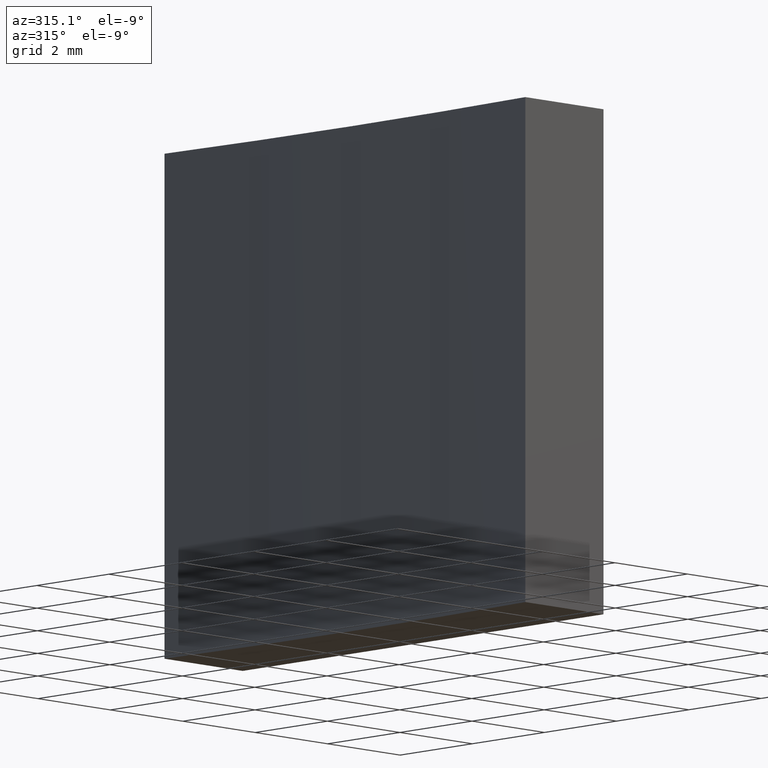
[diagram: clean part render]
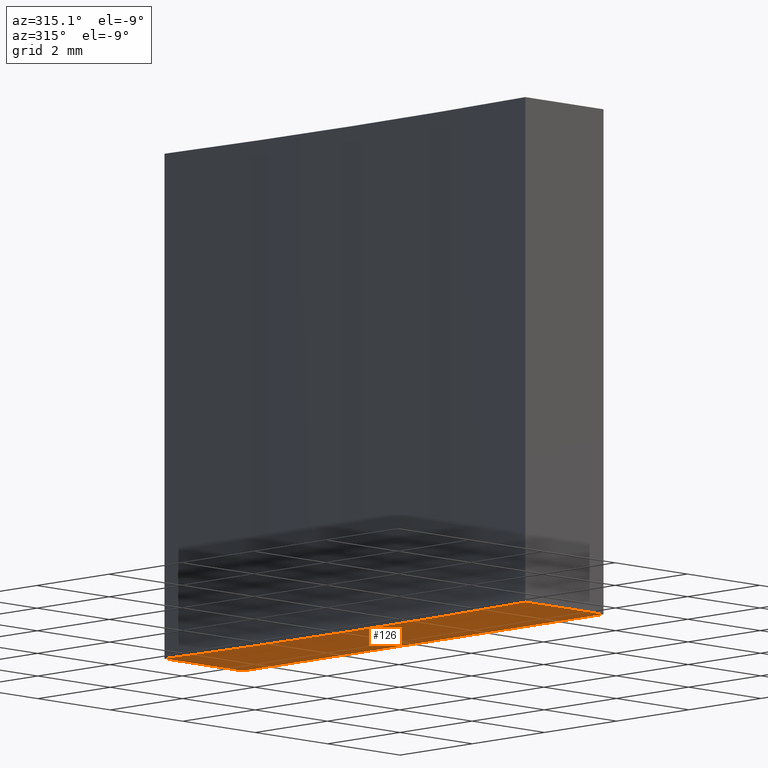
[diagram: same view with one face highlighted and labeled with its STEP entity id]
A machine part, auxiliary view. The second image highlights one B-rep face of the part: STEP entity #126.
In plain terms, the highlighted planar face has unit normal (0, 0, 1).
Its self-contained STEP definition (entity closure, byte-faithful):
#4 = FACE_OUTER_BOUND ( 'NONE', #208, .T. ) ;
#8 = CARTESIAN_POINT ( 'NONE',  ( -94.20070012826145955, 18.68283811033194297, 0.000000000000000000 ) ) ;
#19 = EDGE_CURVE ( 'NONE', #156, #158, #20, .T. ) ;
#20 = LINE ( 'NONE', #73, #142 ) ;
#22 = CARTESIAN_POINT ( 'NONE',  ( -94.20070012826145955, 18.68283811033194297, 0.000000000000000000 ) ) ;
#27 = CARTESIAN_POINT ( 'NONE',  ( -14.65205432023611998, 23.68283811033197850, 0.000000000000000000 ) ) ;
#37 = ORIENTED_EDGE ( 'NONE', *, *, #209, .F. ) ;
#42 = EDGE_CURVE ( 'NONE', #100, #156, #74, .T. ) ;
#44 = VECTOR ( 'NONE', #137, 1000.000000000000000 ) ;
#63 = CARTESIAN_POINT ( 'NONE',  ( -16.81205432023611479, 13.68283811033197139, 0.000000000000000000 ) ) ;
#65 = DIRECTION ( 'NONE',  ( -0.000000000000000000, -0.000000000000000000, -1.000000000000000000 ) ) ;
#69 = ORIENTED_EDGE ( 'NONE', *, *, #223, .F. ) ;
#73 = CARTESIAN_POINT ( 'NONE',  ( -16.81205432023612190, 23.68283811033197850, 0.000000000000000000 ) ) ;
#74 = LINE ( 'NONE', #153, #44 ) ;
#78 = ORIENTED_EDGE ( 'NONE', *, *, #19, .F. ) ;
#85 = DIRECTION ( 'NONE',  ( 1.000000000000000000, 0.000000000000000000, 0.000000000000000000 ) ) ;
#100 = VERTEX_POINT ( 'NONE', #140 ) ;
#103 = CIRCLE ( 'NONE', #234, 77.54999999999999716 ) ;
#104 = DIRECTION ( 'NONE',  ( 1.000000000000000000, 0.000000000000000000, 0.000000000000000000 ) ) ;
#105 = DIRECTION ( 'NONE',  ( 1.000000000000000000, 0.000000000000000000, -0.000000000000000000 ) ) ;
#120 = CARTESIAN_POINT ( 'NONE',  ( -16.81205432023611479, 13.68283811033197139, 0.000000000000000000 ) ) ;
#126 = ADVANCED_FACE ( 'NONE', ( #4 ), #213, .F. ) ;
#134 = ORIENTED_EDGE ( 'NONE', *, *, #42, .F. ) ;
#137 = DIRECTION ( 'NONE',  ( -1.734723475976806108E-16, 1.000000000000000000, -0.000000000000000000 ) ) ;
#140 = CARTESIAN_POINT ( 'NONE',  ( -14.65205432023611820, 13.68283811033197139, 0.000000000000000000 ) ) ;
#142 = VECTOR ( 'NONE', #226, 1000.000000000000000 ) ;
#153 = CARTESIAN_POINT ( 'NONE',  ( -14.65205432023611998, 23.68283811033197850, 0.000000000000000000 ) ) ;
#156 = VERTEX_POINT ( 'NONE', #27 ) ;
#158 = VERTEX_POINT ( 'NONE', #198 ) ;
#161 = AXIS2_PLACEMENT_3D ( 'NONE', #8, #166, #105 ) ;
#166 = DIRECTION ( 'NONE',  ( 0.000000000000000000, 0.000000000000000000, 1.000000000000000000 ) ) ;
#170 = VERTEX_POINT ( 'NONE', #120 ) ;
#198 = CARTESIAN_POINT ( 'NONE',  ( -16.81205432023612190, 23.68283811033197850, 0.000000000000000000 ) ) ;
#207 = VECTOR ( 'NONE', #85, 1000.000000000000000 ) ;
#208 = EDGE_LOOP ( 'NONE', ( #69, #78, #134, #37 ) ) ;
#209 = EDGE_CURVE ( 'NONE', #170, #100, #231, .T. ) ;
#213 = PLANE ( 'NONE',  #161 ) ;
#223 = EDGE_CURVE ( 'NONE', #158, #170, #103, .T. ) ;
#226 = DIRECTION ( 'NONE',  ( -1.000000000000000000, -0.000000000000000000, -0.000000000000000000 ) ) ;
#231 = LINE ( 'NONE', #63, #207 ) ;
#234 = AXIS2_PLACEMENT_3D ( 'NONE', #22, #65, #104 ) ;